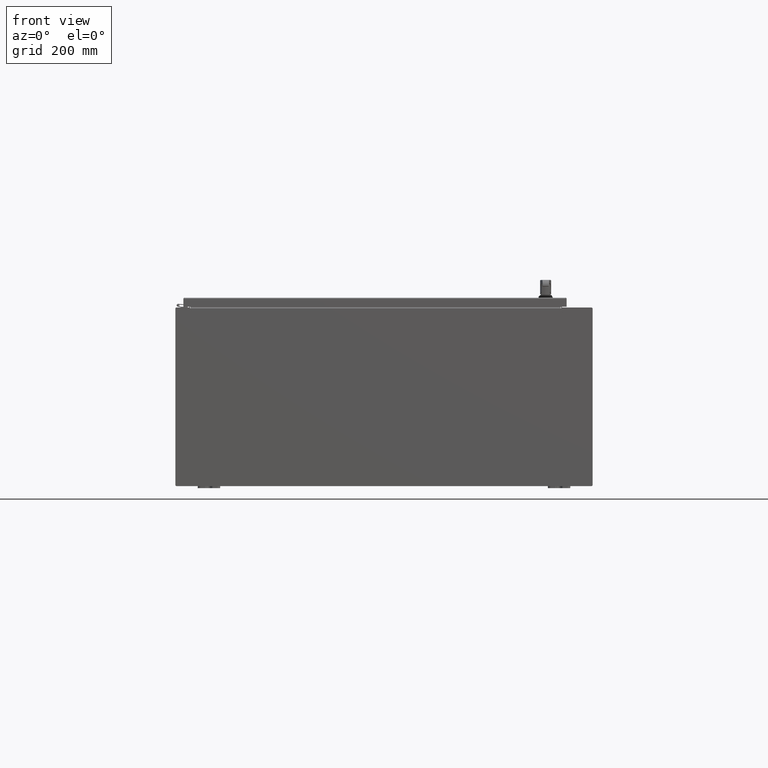
[diagram: clean part render]
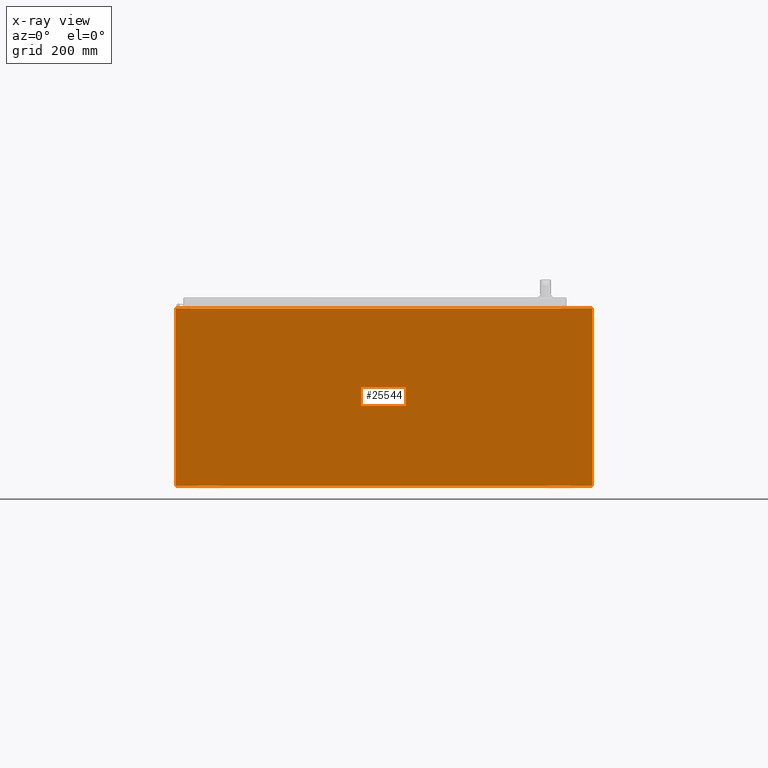
[diagram: x-ray — body ghosted, one internal face saturated and labeled with its STEP entity id]
A machine part, front view, then the same camera in x-ray: the body is ghosted and one INTERNAL B-rep face — a face not visible from any outside direction — is saturated and labeled: STEP entity #25544.
In plain terms, the highlighted planar face has unit normal (0, -1, -0).
Its self-contained STEP definition (entity closure, byte-faithful):
#24605=CARTESIAN_POINT('',(34.488499999999995,15.857549999999998,-2.185478E-017));
#24606=VERTEX_POINT('',#24605);
#24613=CARTESIAN_POINT('',(34.488499999999995,15.857749999999999,-2.185478E-017));
#24614=VERTEX_POINT('',#24613);
#24615=CARTESIAN_POINT('',(34.488499999999995,15.857749999999999,0.0));
#24616=DIRECTION('',(0.0,-1.0,0.0));
#24617=VECTOR('',#24616,0.000200000000001);
#24618=LINE('',#24615,#24617);
#24619=EDGE_CURVE('',#24614,#24606,#24618,.T.);
#24730=CARTESIAN_POINT('',(1.312999999999989,15.857749999999994,-2.185478E-017));
#24731=VERTEX_POINT('',#24730);
#24739=CARTESIAN_POINT('',(1.312999999999989,15.857549999999993,-2.185478E-017));
#24740=VERTEX_POINT('',#24739);
#24741=CARTESIAN_POINT('',(1.312999999999989,15.857549999999993,0.0));
#24742=DIRECTION('',(0.0,1.0,0.0));
#24743=VECTOR('',#24742,0.000200000000001);
#24744=LINE('',#24741,#24743);
#24745=EDGE_CURVE('',#24740,#24731,#24744,.T.);
#25225=CARTESIAN_POINT('',(1.31299999999999,15.857749999999994,0.0));
#25226=DIRECTION('',(1.0,0.0,0.0));
#25227=VECTOR('',#25226,33.175500000000014);
#25228=LINE('',#25225,#25227);
#25229=EDGE_CURVE('',#24731,#24614,#25228,.T.);
#25250=CARTESIAN_POINT('',(34.488699999999994,15.889000000000006,-2.185478E-017));
#25251=VERTEX_POINT('',#25250);
#25258=CARTESIAN_POINT('',(34.488699999999994,15.857549999999998,-2.185478E-017));
#25259=VERTEX_POINT('',#25258);
#25260=CARTESIAN_POINT('',(34.488699999999994,15.857549999999996,0.0));
#25261=DIRECTION('',(0.0,1.0,0.0));
#25262=VECTOR('',#25261,0.03145000000001);
#25263=LINE('',#25260,#25262);
#25264=EDGE_CURVE('',#25259,#25251,#25263,.T.);
#25287=CARTESIAN_POINT('',(34.488499999999995,15.857549999999998,0.0));
#25288=DIRECTION('',(1.0,0.0,0.0));
#25289=VECTOR('',#25288,0.0002);
#25290=LINE('',#25287,#25289);
#25291=EDGE_CURVE('',#24606,#25259,#25290,.T.);
#25311=CARTESIAN_POINT('',(1.312799999999989,15.857549999999993,-2.185478E-017));
#25312=VERTEX_POINT('',#25311);
#25313=CARTESIAN_POINT('',(1.312799999999989,15.857549999999993,0.0));
#25314=DIRECTION('',(1.0,0.0,0.0));
#25315=VECTOR('',#25314,0.000200000000001);
#25316=LINE('',#25313,#25315);
#25317=EDGE_CURVE('',#25312,#24740,#25316,.T.);
#25342=CARTESIAN_POINT('',(1.312799999999989,15.889000000000001,-2.185478E-017));
#25343=VERTEX_POINT('',#25342);
#25344=CARTESIAN_POINT('',(1.31279999999999,15.889000000000001,0.0));
#25345=DIRECTION('',(0.0,-1.0,0.0));
#25346=VECTOR('',#25345,0.031450000000008);
#25347=LINE('',#25344,#25346);
#25348=EDGE_CURVE('',#25343,#25312,#25347,.T.);
#25373=CARTESIAN_POINT('',(37.300999999999995,15.889000000000006,0.0));
#25374=VERTEX_POINT('',#25373);
#25381=CARTESIAN_POINT('',(37.300999999999995,15.889000000000006,0.0));
#25382=DIRECTION('',(-1.0,0.0,0.0));
#25383=VECTOR('',#25382,2.812300000000001);
#25384=LINE('',#25381,#25383);
#25385=EDGE_CURVE('',#25374,#25251,#25384,.T.);
#25396=CARTESIAN_POINT('',(-4.864603E-015,15.889000000000001,0.0));
#25397=VERTEX_POINT('',#25396);
#25398=CARTESIAN_POINT('',(1.312799999999989,15.889000000000001,0.0));
#25399=DIRECTION('',(-1.0,0.0,0.0));
#25400=VECTOR('',#25399,1.312799999999996);
#25401=LINE('',#25398,#25400);
#25402=EDGE_CURVE('',#25343,#25397,#25401,.T.);
#25467=CARTESIAN_POINT('',(0.0,0.0,0.0));
#25468=VERTEX_POINT('',#25467);
#25469=CARTESIAN_POINT('',(-4.864603E-015,15.889000000000001,0.0));
#25470=DIRECTION('',(0.0,-1.0,0.0));
#25471=VECTOR('',#25470,15.889000000000001);
#25472=LINE('',#25469,#25471);
#25473=EDGE_CURVE('',#25397,#25468,#25472,.T.);
#25490=CARTESIAN_POINT('',(37.301000000000002,0.0,0.0));
#25491=VERTEX_POINT('',#25490);
#25498=CARTESIAN_POINT('',(37.301000000000002,0.0,0.0));
#25499=DIRECTION('',(0.0,1.0,0.0));
#25500=VECTOR('',#25499,15.889000000000006);
#25501=LINE('',#25498,#25500);
#25502=EDGE_CURVE('',#25491,#25374,#25501,.T.);
#25515=CARTESIAN_POINT('',(0.0,0.0,0.0));
#25516=DIRECTION('',(1.0,0.0,0.0));
#25517=VECTOR('',#25516,37.301000000000002);
#25518=LINE('',#25515,#25517);
#25519=EDGE_CURVE('',#25468,#25491,#25518,.T.);
#25525=CARTESIAN_POINT('',(18.650500000000008,7.944500000000003,0.0));
#25526=DIRECTION('',(0.0,0.0,1.0));
#25527=DIRECTION('',(1.0,0.0,0.0));
#25528=AXIS2_PLACEMENT_3D('',#25525,#25526,#25527);
#25529=PLANE('',#25528);
#25530=ORIENTED_EDGE('',*,*,#25264,.T.);
#25531=ORIENTED_EDGE('',*,*,#25385,.F.);
#25532=ORIENTED_EDGE('',*,*,#25502,.F.);
#25533=ORIENTED_EDGE('',*,*,#25519,.F.);
#25534=ORIENTED_EDGE('',*,*,#25473,.F.);
#25535=ORIENTED_EDGE('',*,*,#25402,.F.);
#25536=ORIENTED_EDGE('',*,*,#25348,.T.);
#25537=ORIENTED_EDGE('',*,*,#25317,.T.);
#25538=ORIENTED_EDGE('',*,*,#24745,.T.);
#25539=ORIENTED_EDGE('',*,*,#25229,.T.);
#25540=ORIENTED_EDGE('',*,*,#24619,.T.);
#25541=ORIENTED_EDGE('',*,*,#25291,.T.);
#25542=EDGE_LOOP('',(#25530,#25531,#25532,#25533,#25534,#25535,#25536,#25537,#25538,#25539,#25540,#25541));
#25543=FACE_OUTER_BOUND('',#25542,.T.);
#25544=ADVANCED_FACE('',(#25543),#25529,.F.);